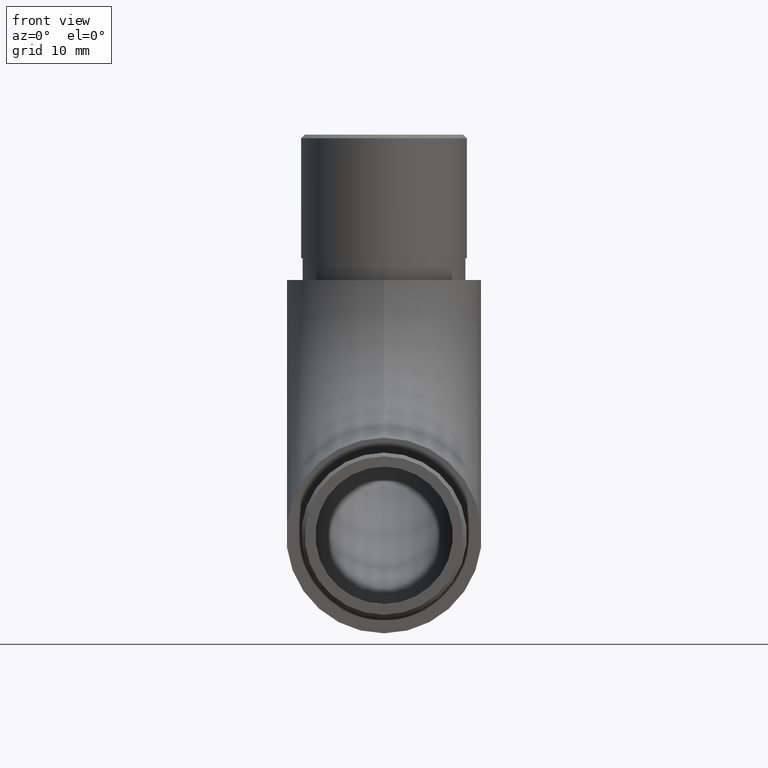
[diagram: clean part render]
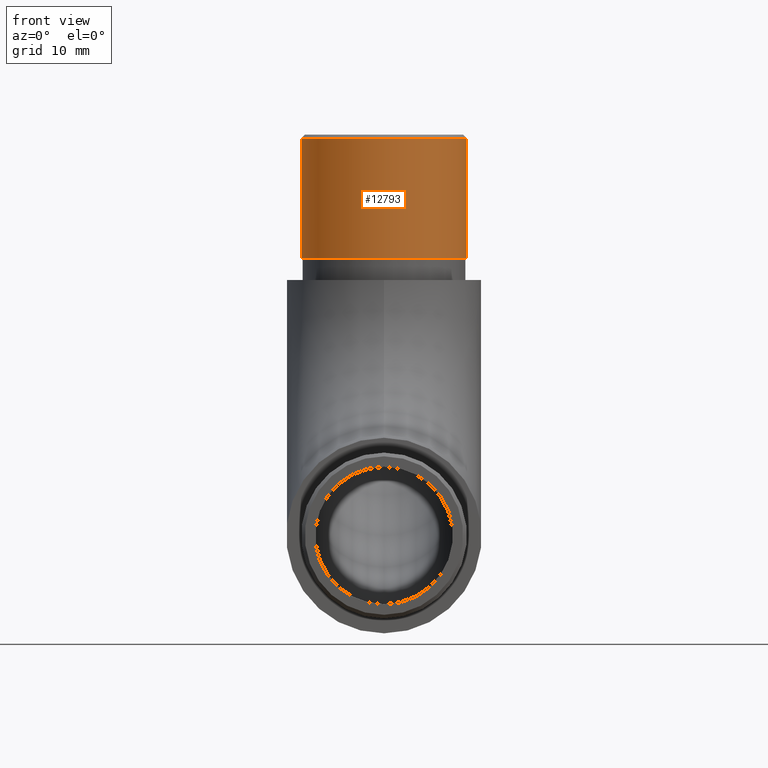
[diagram: same view with one face highlighted and labeled with its STEP entity id]
A machine part, front view. The second image highlights one B-rep face of the part: STEP entity #12793.
In plain terms, the highlighted cylindrical surface (bore or boss wall) has radius 11.4 mm, axis along (-0, -0, -1).
Its self-contained STEP definition (entity closure, byte-faithful):
#226 = DIRECTION ( 'NONE',  ( -0.0000000000000000000, -0.0000000000000000000, -1.000000000000000000 ) ) ;
#692 = EDGE_CURVE ( 'NONE', #3827, #3827, #5274, .T. ) ;
#1236 = DIRECTION ( 'NONE',  ( -1.000000000000000000, 0.0000000000000000000, 0.0000000000000000000 ) ) ;
#1296 = AXIS2_PLACEMENT_3D ( 'NONE', #4786, #1861, #11785 ) ;
#1861 = DIRECTION ( 'NONE',  ( 0.0000000000000000000, 0.0000000000000000000, 1.000000000000000000 ) ) ;
#2190 = DIRECTION ( 'NONE',  ( 1.000000000000000000, 0.0000000000000000000, 0.0000000000000000000 ) ) ;
#2205 = AXIS2_PLACEMENT_3D ( 'NONE', #3424, #226, #1236 ) ;
#2636 = EDGE_LOOP ( 'NONE', ( #3959 ) ) ;
#3030 = EDGE_CURVE ( 'NONE', #6659, #6659, #5500, .T. ) ;
#3424 = CARTESIAN_POINT ( 'NONE',  ( 0.0000000000000000000, 35.14999999999999900, 68.60000000000000900 ) ) ;
#3827 = VERTEX_POINT ( 'NONE', #9722 ) ;
#3959 = ORIENTED_EDGE ( 'NONE', *, *, #3030, .T. ) ;
#4786 = CARTESIAN_POINT ( 'NONE',  ( 0.0000000000000000000, 35.14999999999999900, 51.60000000000000900 ) ) ;
#5274 = CIRCLE ( 'NONE', #1296, 11.40000000000000000 ) ;
#5500 = CIRCLE ( 'NONE', #8479, 11.40000000000000000 ) ;
#5900 = CARTESIAN_POINT ( 'NONE',  ( 11.40000000000000000, 35.14999999999999900, 68.10000000000000900 ) ) ;
#6212 = CYLINDRICAL_SURFACE ( 'NONE', #2205, 11.40000000000000000 ) ;
#6659 = VERTEX_POINT ( 'NONE', #5900 ) ;
#8479 = AXIS2_PLACEMENT_3D ( 'NONE', #11167, #10168, #2190 ) ;
#9722 = CARTESIAN_POINT ( 'NONE',  ( 11.40000000000000000, 35.14999999999999900, 51.60000000000000900 ) ) ;
#9771 = FACE_OUTER_BOUND ( 'NONE', #2636, .T. ) ;
#10168 = DIRECTION ( 'NONE',  ( 0.0000000000000000000, 0.0000000000000000000, -1.000000000000000000 ) ) ;
#11167 = CARTESIAN_POINT ( 'NONE',  ( 0.0000000000000000000, 35.14999999999999900, 68.10000000000000900 ) ) ;
#11185 = FACE_OUTER_BOUND ( 'NONE', #12145, .T. ) ;
#11785 = DIRECTION ( 'NONE',  ( 1.000000000000000000, 0.0000000000000000000, 0.0000000000000000000 ) ) ;
#11845 = ORIENTED_EDGE ( 'NONE', *, *, #692, .T. ) ;
#12145 = EDGE_LOOP ( 'NONE', ( #11845 ) ) ;
#12793 = ADVANCED_FACE ( 'NONE', ( #9771, #11185 ), #6212, .T. ) ;